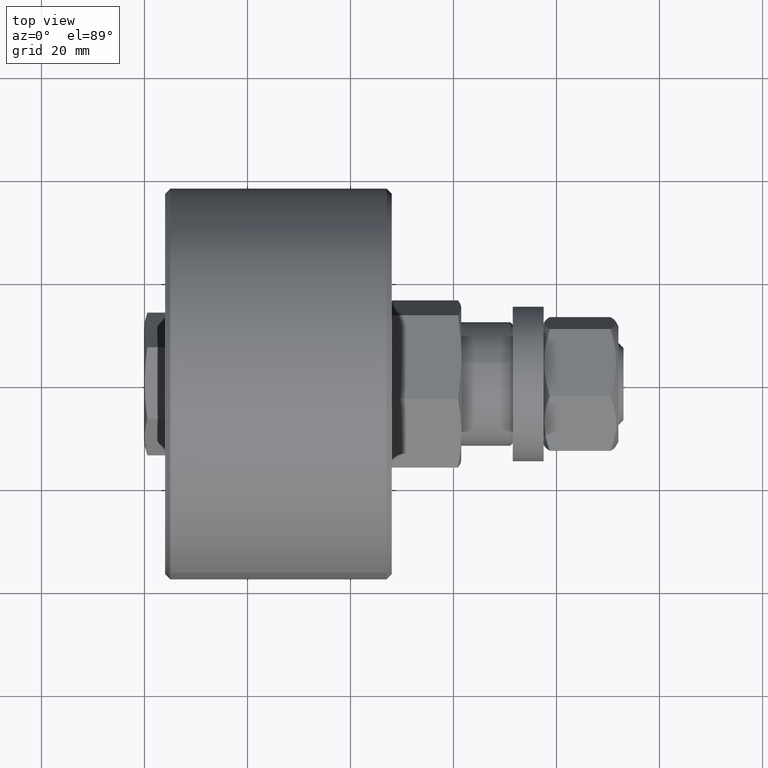
[diagram: clean part render]
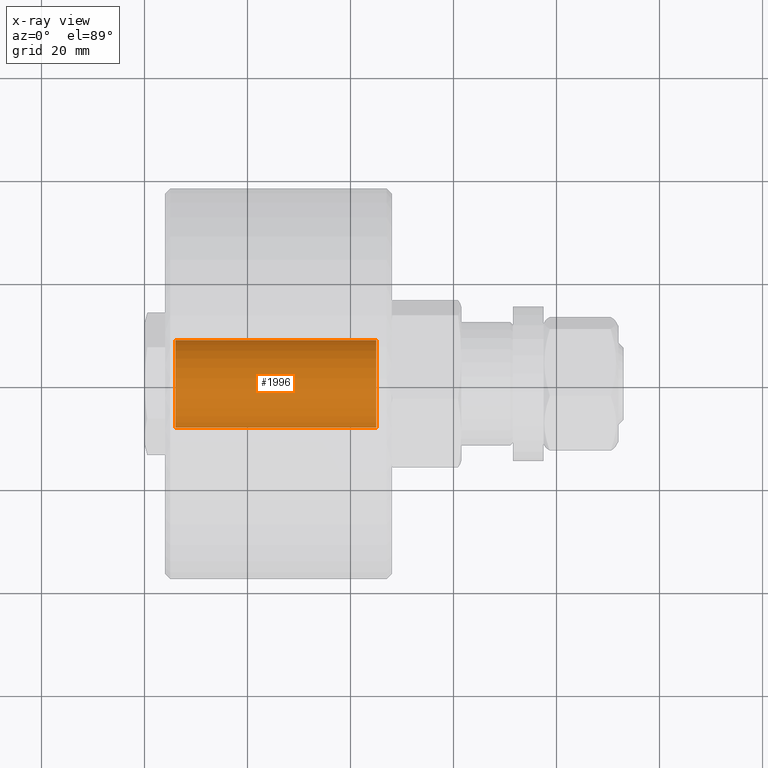
[diagram: x-ray — body ghosted, one internal face saturated and labeled with its STEP entity id]
A machine part, top view, then the same camera in x-ray: the body is ghosted and one INTERNAL B-rep face — a face not visible from any outside direction — is saturated and labeled: STEP entity #1996.
In plain terms, the highlighted cylindrical surface (bore or boss wall) has radius 8.5 mm, axis along (1, 0, 0).
Its self-contained STEP definition (entity closure, byte-faithful):
#273=CYLINDRICAL_SURFACE('',#2282,8.5);
#304=FACE_OUTER_BOUND('',#420,.T.);
#420=EDGE_LOOP('',(#1400,#1401,#1402,#1403));
#571=LINE('',#3199,#645);
#645=VECTOR('',#2584,8.5);
#709=CIRCLE('',#2281,8.5);
#710=CIRCLE('',#2283,8.5);
#852=VERTEX_POINT('',#3194);
#853=VERTEX_POINT('',#3197);
#1071=EDGE_CURVE('',#852,#852,#709,.T.);
#1072=EDGE_CURVE('',#853,#853,#710,.T.);
#1073=EDGE_CURVE('',#853,#852,#571,.T.);
#1400=ORIENTED_EDGE('',*,*,#1072,.F.);
#1401=ORIENTED_EDGE('',*,*,#1073,.T.);
#1402=ORIENTED_EDGE('',*,*,#1071,.T.);
#1403=ORIENTED_EDGE('',*,*,#1073,.F.);
#1996=ADVANCED_FACE('',(#304),#273,.T.);
#2281=AXIS2_PLACEMENT_3D('',#3195,#2578,#2579);
#2282=AXIS2_PLACEMENT_3D('',#3196,#2580,#2581);
#2283=AXIS2_PLACEMENT_3D('',#3198,#2582,#2583);
#2578=DIRECTION('center_axis',(1.,0.,0.));
#2579=DIRECTION('ref_axis',(0.,1.,0.));
#2580=DIRECTION('center_axis',(1.,0.,0.));
#2581=DIRECTION('ref_axis',(0.,1.,0.));
#2582=DIRECTION('center_axis',(1.,0.,0.));
#2583=DIRECTION('ref_axis',(0.,1.,0.));
#2584=DIRECTION('',(-1.,0.,0.));
#3194=CARTESIAN_POINT('',(6.,-8.5,-1.04094977927525E-15));
#3195=CARTESIAN_POINT('Origin',(6.,0.,0.));
#3196=CARTESIAN_POINT('Origin',(25.5,0.,0.));
#3197=CARTESIAN_POINT('',(45.,-8.5,-1.04094977927525E-15));
#3198=CARTESIAN_POINT('Origin',(45.,0.,0.));
#3199=CARTESIAN_POINT('',(25.5,-8.5,-1.04094977927525E-15));